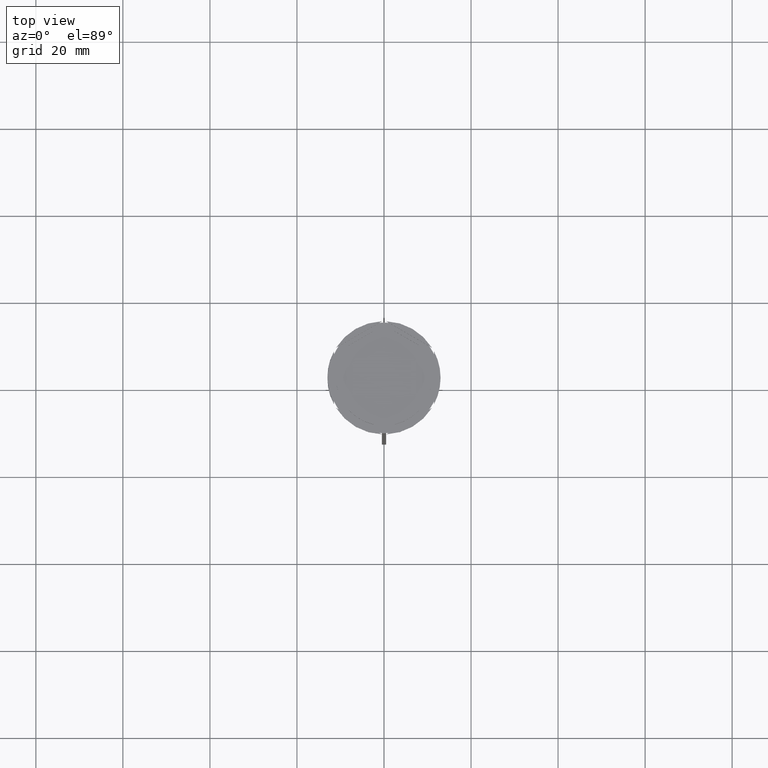
[diagram: clean part render]
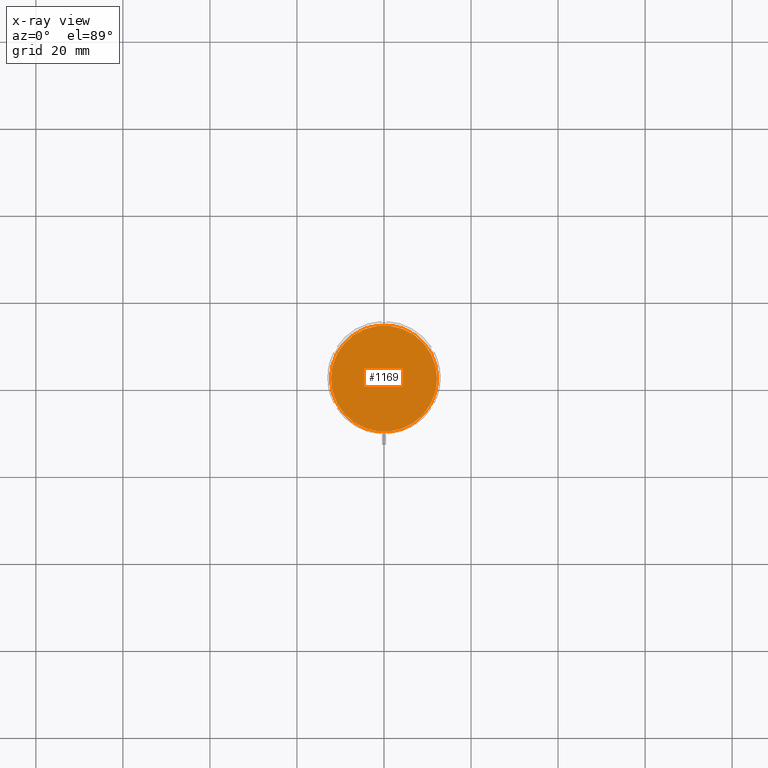
[diagram: x-ray — body ghosted, one internal face saturated and labeled with its STEP entity id]
A machine part, top view, then the same camera in x-ray: the body is ghosted and one INTERNAL B-rep face — a face not visible from any outside direction — is saturated and labeled: STEP entity #1169.
In plain terms, the highlighted planar face has unit normal (0, 0, -1).
Its self-contained STEP definition (entity closure, byte-faithful):
#70 = CARTESIAN_POINT ( 'NONE',  ( 0.000000000000000000, 0.000000000000000000, -12.00000000000000000 ) ) ;
#99 = DIRECTION ( 'NONE',  ( -1.000000000000000000, 0.000000000000000000, 0.000000000000000000 ) ) ;
#214 = AXIS2_PLACEMENT_3D ( 'NONE', #1284, #2379, #857 ) ;
#349 = AXIS2_PLACEMENT_3D ( 'NONE', #70, #719, #99 ) ;
#629 = ORIENTED_EDGE ( 'NONE', *, *, #1117, .T. ) ;
#634 = VERTEX_POINT ( 'NONE', #2346 ) ;
#719 = DIRECTION ( 'NONE',  ( -0.000000000000000000, -0.000000000000000000, 1.000000000000000000 ) ) ;
#759 = CARTESIAN_POINT ( 'NONE',  ( 0.000000000000000000, 0.000000000000000000, -12.00000000000000000 ) ) ;
#857 = DIRECTION ( 'NONE',  ( -1.000000000000000000, 0.000000000000000000, -0.000000000000000000 ) ) ;
#1102 = EDGE_LOOP ( 'NONE', ( #629, #2349 ) ) ;
#1117 = EDGE_CURVE ( 'NONE', #634, #2224, #2166, .T. ) ;
#1169 = ADVANCED_FACE ( 'NONE', ( #1718 ), #2808, .F. ) ;
#1284 = CARTESIAN_POINT ( 'NONE',  ( 0.000000000000000000, 0.000000000000000000, -12.00000000000000000 ) ) ;
#1542 = CARTESIAN_POINT ( 'NONE',  ( 12.20000000000000639, 1.512438796946981880E-15, -12.00000000000000000 ) ) ;
#1647 = DIRECTION ( 'NONE',  ( -0.000000000000000000, -0.000000000000000000, 1.000000000000000000 ) ) ;
#1651 = CIRCLE ( 'NONE', #349, 12.20000000000000639 ) ;
#1663 = DIRECTION ( 'NONE',  ( -1.000000000000000000, 0.000000000000000000, 0.000000000000000000 ) ) ;
#1718 = FACE_OUTER_BOUND ( 'NONE', #1102, .T. ) ;
#2166 = CIRCLE ( 'NONE', #2728, 12.20000000000000639 ) ;
#2224 = VERTEX_POINT ( 'NONE', #1542 ) ;
#2346 = CARTESIAN_POINT ( 'NONE',  ( -12.20000000000000639, 0.000000000000000000, -12.00000000000000000 ) ) ;
#2349 = ORIENTED_EDGE ( 'NONE', *, *, #2597, .T. ) ;
#2379 = DIRECTION ( 'NONE',  ( 0.000000000000000000, 0.000000000000000000, -1.000000000000000000 ) ) ;
#2597 = EDGE_CURVE ( 'NONE', #2224, #634, #1651, .T. ) ;
#2728 = AXIS2_PLACEMENT_3D ( 'NONE', #759, #1647, #1663 ) ;
#2808 = PLANE ( 'NONE',  #214 ) ;